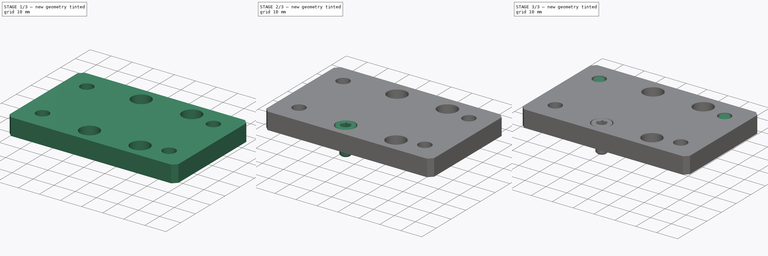
[diagram: build sequence overview — one tinted view per stage of 3, left to right]
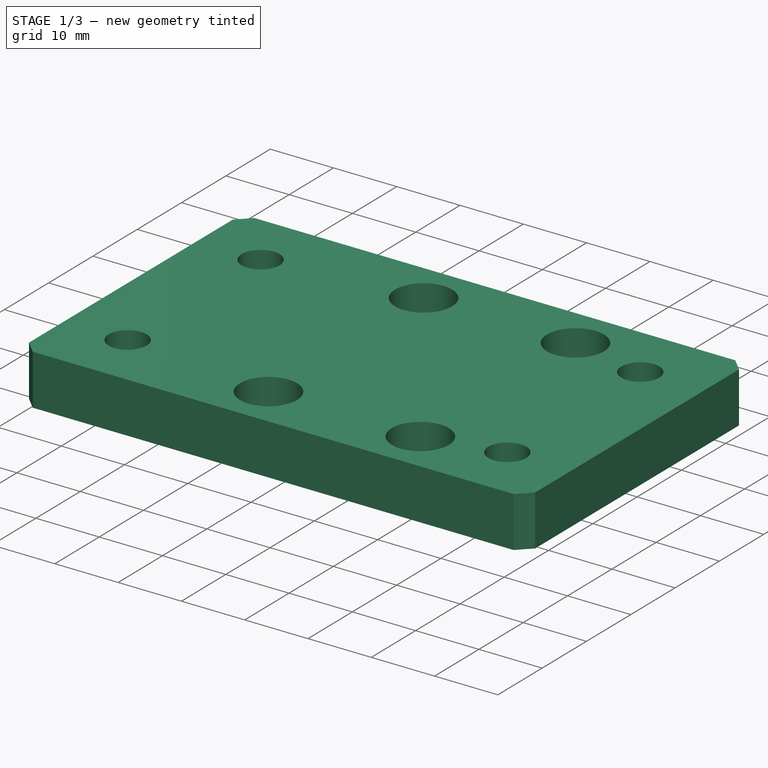
[diagram: stage 1 of 3 — iso view after this stage's code; geometry added in this stage tinted green]
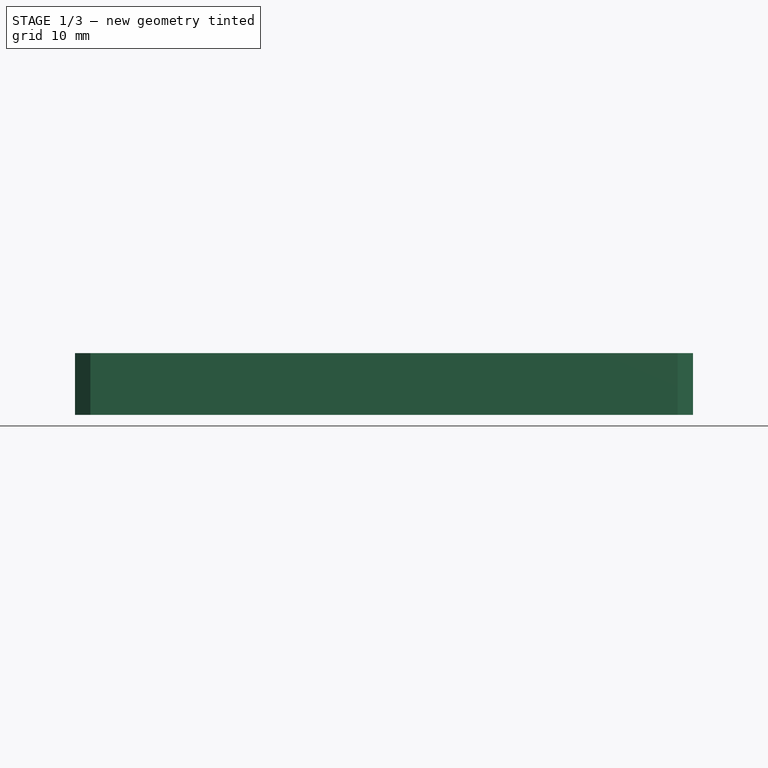
[diagram: stage 1 of 3 — front view after this stage's code; geometry added in this stage tinted green]
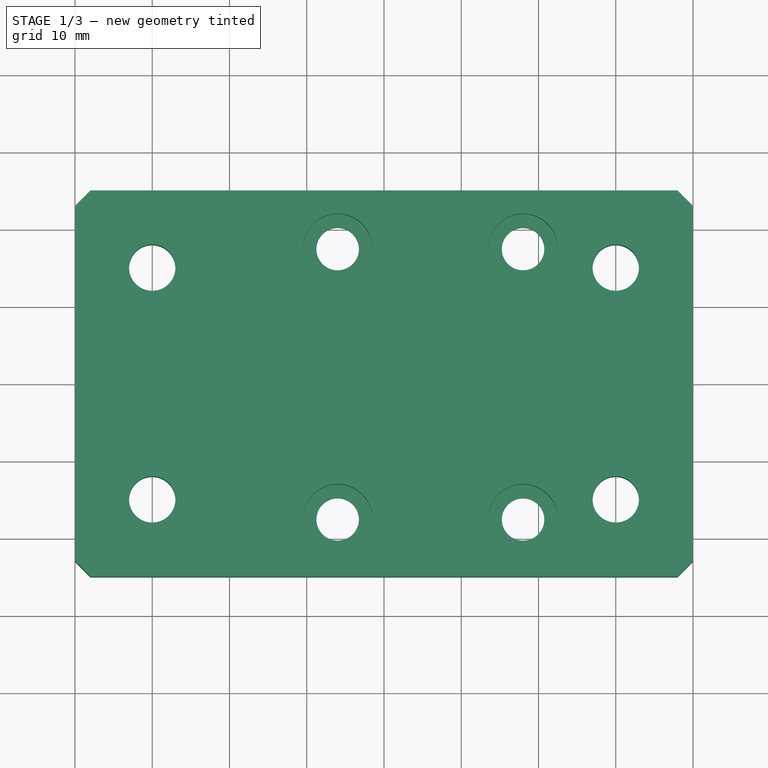
[diagram: stage 1 of 3 — top view after this stage's code; geometry added in this stage tinted green]
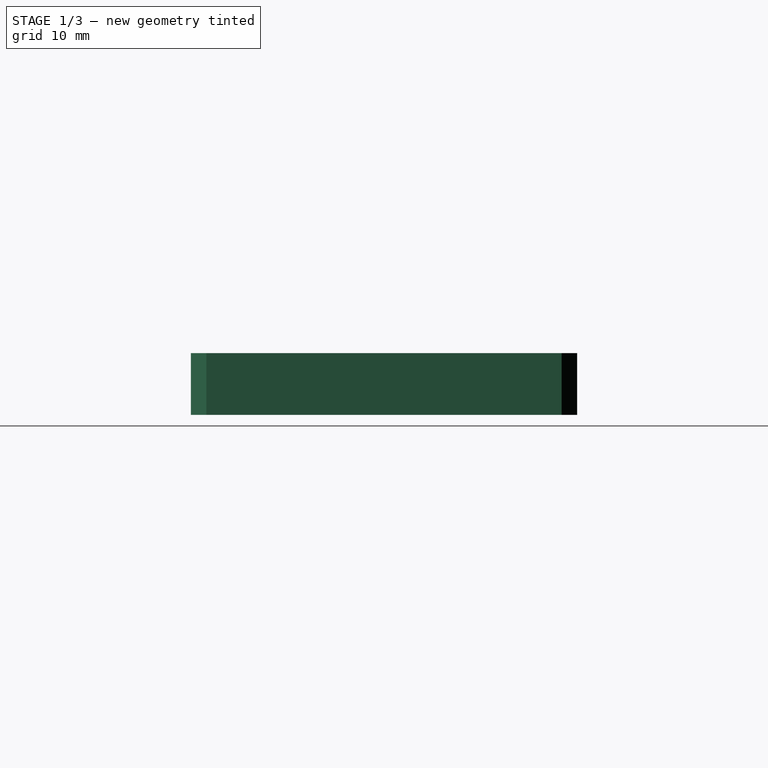
[diagram: stage 1 of 3 — right view after this stage's code; geometry added in this stage tinted green]
FCSTD DOCUMENT  (FreeCAD 1.0R39109 (Git))
Label: Bracket for X axis ball screw
License: All rights reserved
LicenseURL: https://en.wikipedia.org/wiki/All_rights_reserved
objects: Part::Feature×10, Part::FeaturePython×4, Sketcher::SketchObject×2, App::Part×2, PartDesign::Chamfer×2, PartDesign::Pad×1, PartDesign::Hole×1, PartDesign::Body×1
note: 31 computed .brp shape members not serialized (recipe doc carries the construction recipe); baked Part::Feature solids carry a one-line shape summary decoded from their .brp

FEATURE [Sketcher::SketchObject] Sketch
  ArcFitTolerance = 1e-06
  AttachmentSupport = -> [XY_Plane]
  FullyConstrained = true
  MakeInternals = false
  MapMode = 5
  sketch-geometry (12):
    g0: LineSegment StartX=-40 StartY=25 StartZ=0 EndX=-40 EndY=-25 EndZ=0
    g1: LineSegment StartX=-40 StartY=-25 StartZ=0 EndX=40 EndY=-25 EndZ=0
    g2: LineSegment StartX=40 StartY=-25 StartZ=0 EndX=40 EndY=25 EndZ=0
    g3: LineSegment StartX=40 StartY=25 StartZ=0 EndX=-40 EndY=25 EndZ=0
    g4: LineSegment [constr] StartX=-30 StartY=15 StartZ=0 EndX=-30 EndY=-15 EndZ=0
    g5: LineSegment [constr] StartX=-30 StartY=-15 StartZ=0 EndX=30 EndY=-15 EndZ=0
    g6: LineSegment [constr] StartX=30 StartY=-15 StartZ=0 EndX=30 EndY=15 EndZ=0
    g7: LineSegment [constr] StartX=30 StartY=15 StartZ=0 EndX=-30 EndY=15 EndZ=0
    g8: Circle CenterX=-30 CenterY=15 CenterZ=0 NormalX=0 NormalY=0 NormalZ=1 AngleXU=0 Radius=3
    g9: Circle CenterX=30 CenterY=15 CenterZ=0 NormalX=0 NormalY=0 NormalZ=1 AngleXU=0 Radius=3
    g10: Circle CenterX=30 CenterY=-15 CenterZ=0 NormalX=0 NormalY=0 NormalZ=1 AngleXU=0 Radius=3
    g11: Circle CenterX=-30 CenterY=-15 CenterZ=0 NormalX=0 NormalY=0 NormalZ=1 AngleXU=0 Radius=3
  constraints (30):
    c: Coincident(g0,g1)
    c: Coincident(g1,g2)
    c: Coincident(g2,g3)
    c: Coincident(g3,g0)
    c: Vertical(g0)
    c: Vertical(g2)
    c: Horizontal(g1)
    c: Horizontal(g3)
    c: Distance(g1) = 80
    c: Distance(g2) = 50
    c: Symmetric(g0,g1,g-1)
    c: Coincident(g4,g5)
    c: Coincident(g5,g6)
    c: Coincident(g6,g7)
    c: Coincident(g7,g4)
    c: Vertical(g4)
    c: Vertical(g6)
    c: Horizontal(g5)
    c: Horizontal(g7)
    c: Symmetric(g4,g5,g-1)
    c: Distance(g7) = 60
    c: Distance(g4) = 30
    c: Coincident(g8,g4)
    c: Diameter(g9) = 6
    c: Coincident(g9,g6)
    c: Coincident(g10,g5)
    c: Coincident(g11,g4)
    c: Equal(g11,g8)
    c: Equal(g8,g9)
    c: Equal(g9,g10)
FEATURE [PartDesign::Pad] Pad
  Direction = (0,0,1)
  Length = 8
  Length2 = 10
  Profile = -> Sketch
  ReferenceAxis = -> Sketch [N_Axis]
  Refine = true
  Reversed = true
  Suppressed = false
  Type = 0
FEATURE [Sketcher::SketchObject] Sketch001
  ArcFitTolerance = 1e-06
  AttachmentSupport = -> [XY_Plane]
  FullyConstrained = false
  MakeInternals = false
  MapMode = 5
  sketch-geometry (14):
    g0: LineSegment [constr] StartX=-24 StartY=25 StartZ=0 EndX=-24 EndY=-25 EndZ=0
    g1: LineSegment [constr] StartX=-24 StartY=-25 StartZ=0 EndX=24 EndY=-25 EndZ=0
    g2: LineSegment [constr] StartX=24 StartY=-25 StartZ=0 EndX=24 EndY=25 EndZ=0
    g3: LineSegment [constr] StartX=24 StartY=25 StartZ=0 EndX=-24 EndY=25 EndZ=0
    g4: LineSegment [constr] StartX=-12 StartY=25 StartZ=0 EndX=-12 EndY=-25 EndZ=0
    g5: GeomPoint [constr] X=6 Y=-1.4e-15 Z=0
    g6: LineSegment [constr] StartX=-6 StartY=17.5 StartZ=0 EndX=-6 EndY=-17.5 EndZ=0
    g7: LineSegment [constr] StartX=-6 StartY=-17.5 StartZ=0 EndX=18 EndY=-17.5 EndZ=0
    g8: LineSegment [constr] StartX=18 StartY=-17.5 StartZ=0 EndX=18 EndY=17.5 EndZ=0
    g9: LineSegment [constr] StartX=18 StartY=17.5 StartZ=0 EndX=-6 EndY=17.5 EndZ=0
    g10: Circle CenterX=-6 CenterY=17.5 CenterZ=0 NormalX=0 NormalY=0 NormalZ=1 AngleXU=0 Radius=3.03278
    g11: Circle CenterX=18 CenterY=17.5 CenterZ=0 NormalX=0 NormalY=0 NormalZ=1 AngleXU=0 Radius=2.46457
    g12: Circle CenterX=-6 CenterY=-17.5 CenterZ=0 NormalX=0 NormalY=0 NormalZ=1 AngleXU=0 Radius=2.39818
    g13: Circle CenterX=18 CenterY=-17.5 CenterZ=0 NormalX=0 NormalY=0 NormalZ=1 AngleXU=0 Radius=3.50348
  constraints (31):
    c: Coincident(g0,g1)
    c: Coincident(g1,g2)
    c: Coincident(g2,g3)
    c: Coincident(g3,g0)
    c: Vertical(g0)
    c: Vertical(g2)
    c: Horizontal(g1)
    c: Horizontal(g3)
    c: Distance(g1) = 48
    c: Distance(g2) = 50
    c: Symmetric(g0,g1,g-1)
    c: PointOnObject(g4,g3)
    c: PointOnObject(g4,g1)
    c: Vertical(g4)
    c: Symmetric(g4,g1,g5)
    c: Distance(g4,g2) = 36
    c: Coincident(g6,g7)
    c: Coincident(g7,g8)
    c: Coincident(g8,g9)
    c: Coincident(g9,g6)
    c: Vertical(g6)
    c: Vertical(g8)
    c: Horizontal(g7)
    c: Horizontal(g9)
    c: Symmetric(g6,g7,g5)
    c: Distance(g7) = 24
    c: Distance(g8) = 35
    c: Coincident(g10,g6)
    c: Coincident(g11,g8)
    c: Coincident(g12,g6)
    c: Coincident(g13,g7)
FEATURE [PartDesign::Hole] Hole
  BaseFeature = -> Pad
  CustomThreadClearance = 0
  Depth = 191.25
  DepthType = 1
  Diameter = 5.5
  DrillForDepth = false
  DrillPoint = 1
  DrillPointAngle = 118
  HoleCutCountersinkAngle = 90
  HoleCutCustomValues = false
  HoleCutDepth = 5.5
  HoleCutDiameter = 9
  HoleCutType = 1
  ModelThread = false
  Profile = -> Sketch001
  Refine = true
  Suppressed = false
  Tapered = false
  TaperedAngle = 90
  ThreadClass = 0
  ThreadDepth = 191.25
  ThreadDepthType = 0
  ThreadDirection = 0
  ThreadFit = 0
  ThreadSize = 13
  ThreadType = 1
  Threaded = false
  UseCustomThreadClearance = false
FEATURE [PartDesign::Chamfer] Chamfer
  Angle = 45
  Base = -> Hole [Edge1,Edge2,Edge5,Edge8]
  BaseFeature = -> Hole
  ChamferType = 0
  FlipDirection = false
  Refine = true
  Size = 2
  Size2 = 1
  SupportTransform = false
  Suppressed = false
  UseAllEdges = false
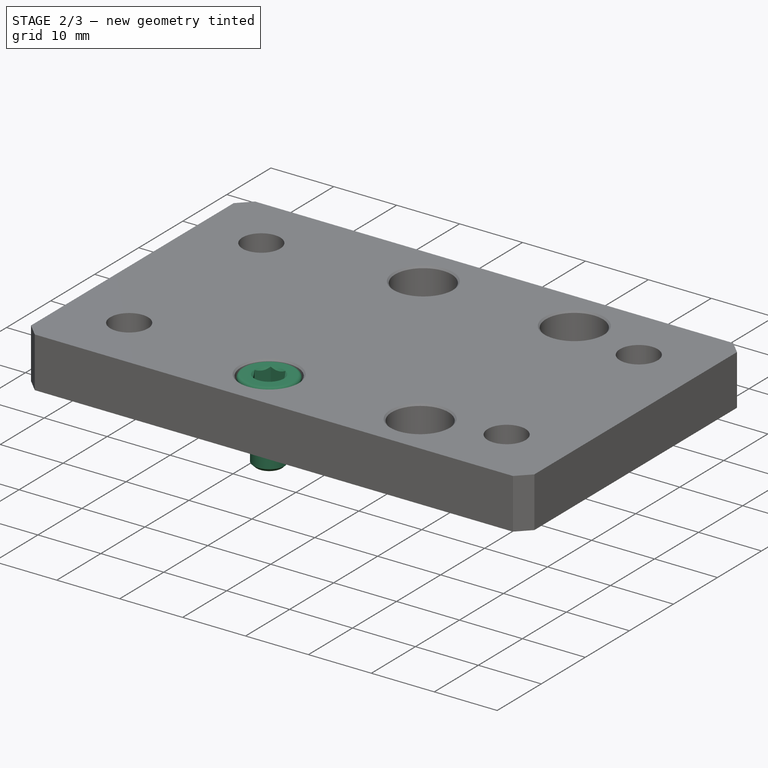
[diagram: stage 2 of 3 — iso view after this stage's code; geometry added in this stage tinted green]
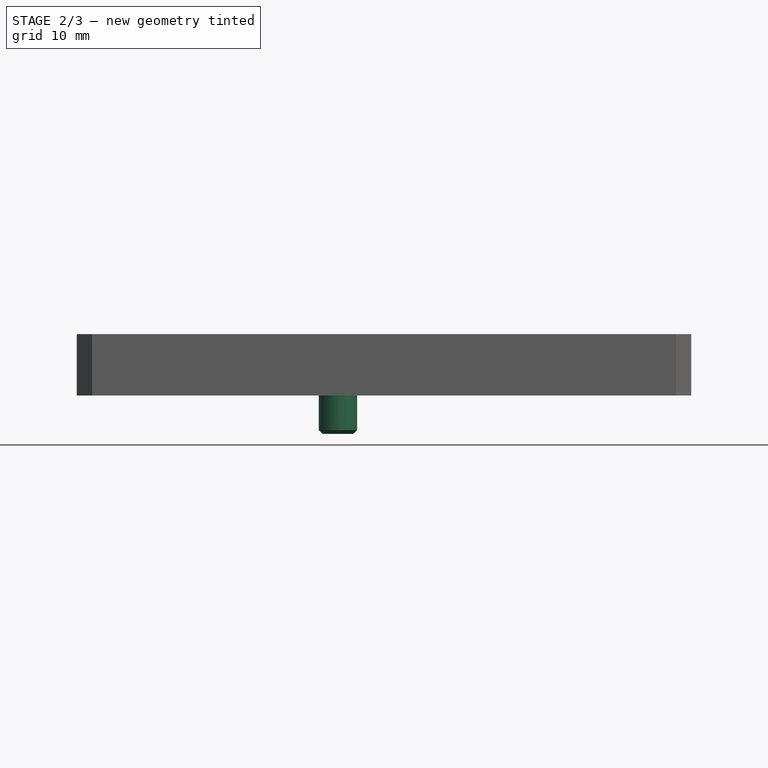
[diagram: stage 2 of 3 — front view after this stage's code; geometry added in this stage tinted green]
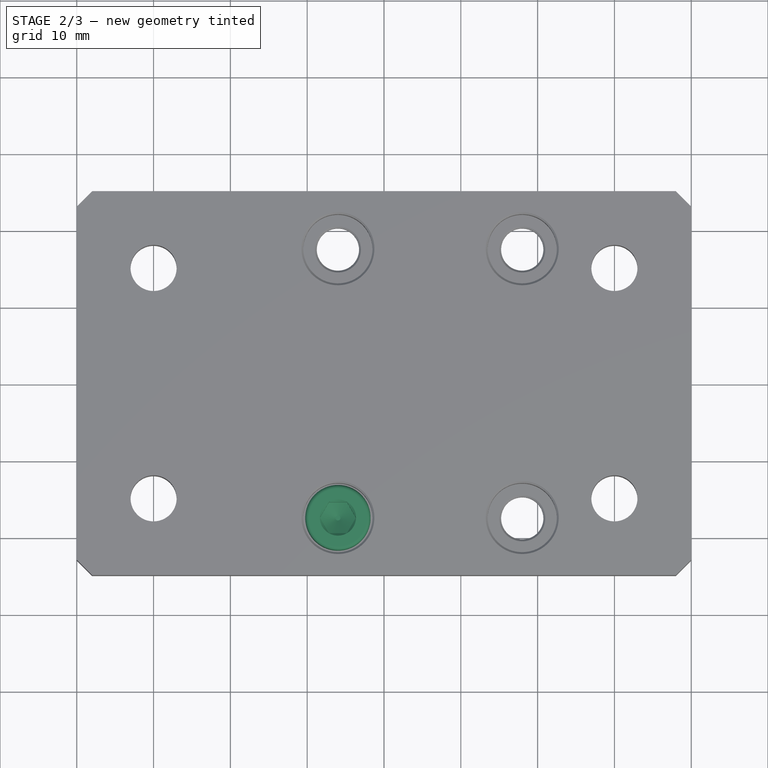
[diagram: stage 2 of 3 — top view after this stage's code; geometry added in this stage tinted green]
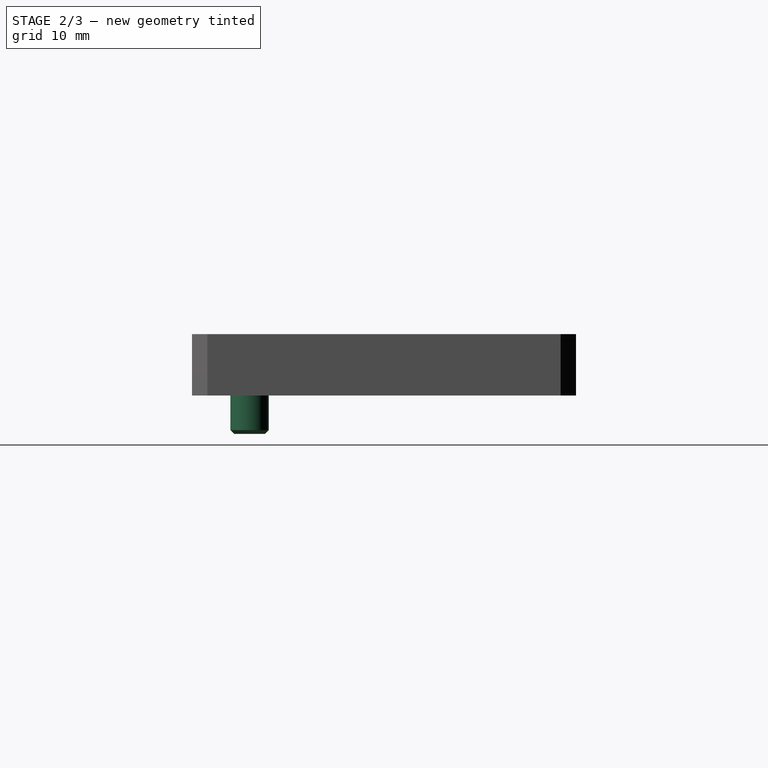
[diagram: stage 2 of 3 — right view after this stage's code; geometry added in this stage tinted green]
FEATURE [Part::FeaturePython] Screw004  label="M5x8-Screw002"  # WARN: FeaturePython — macro-defined, semantics opaque (R4)
  Diameter = 6
  Invert = false
  LeftHanded = false
  Length = 0
  LengthCustom = 8
  MatchOuter = false
  OffsetAngle = 0
  Placement = pos=(-6,-17.5,-5) rot=(0,0,-1;3.14159rad)
  Thread = false
  Type = 75
FEATURE [PartDesign::Chamfer] Chamfer001
  Angle = 45
  Base = -> Chamfer [Edge19,Edge60,Edge58,Edge17,Edge56,Edge14,Edge13,Edge54]
  BaseFeature = -> Chamfer
  ChamferType = 0
  FlipDirection = false
  Refine = true
  Size = 0.25
  Size2 = 1
  SupportTransform = false
  Suppressed = false
  UseAllEdges = false
FEATURE [PartDesign::Body] Body
  AllowCompound = false
  Group = -> [Sketch,Pad,Sketch001,Hole,Chamfer,Chamfer001]
  Origin = -> Origin
  Tip = -> Chamfer001
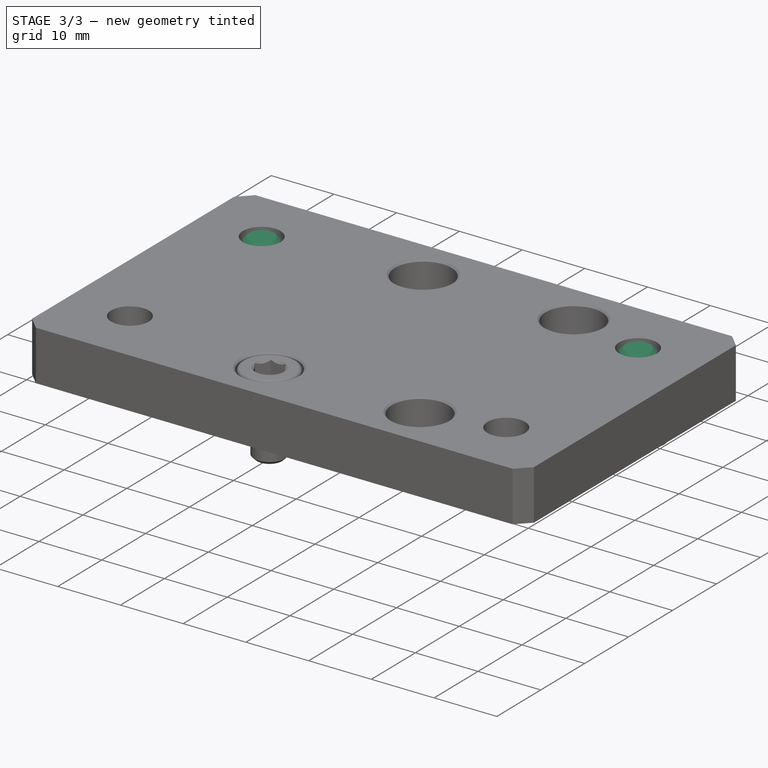
[diagram: stage 3 of 3 — iso view after this stage's code; geometry added in this stage tinted green]
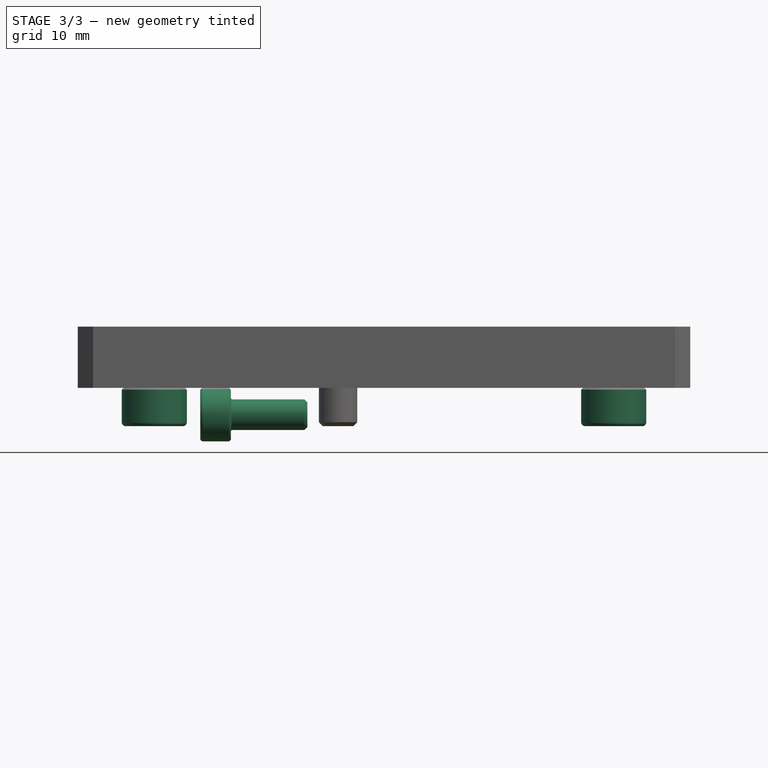
[diagram: stage 3 of 3 — front view after this stage's code; geometry added in this stage tinted green]
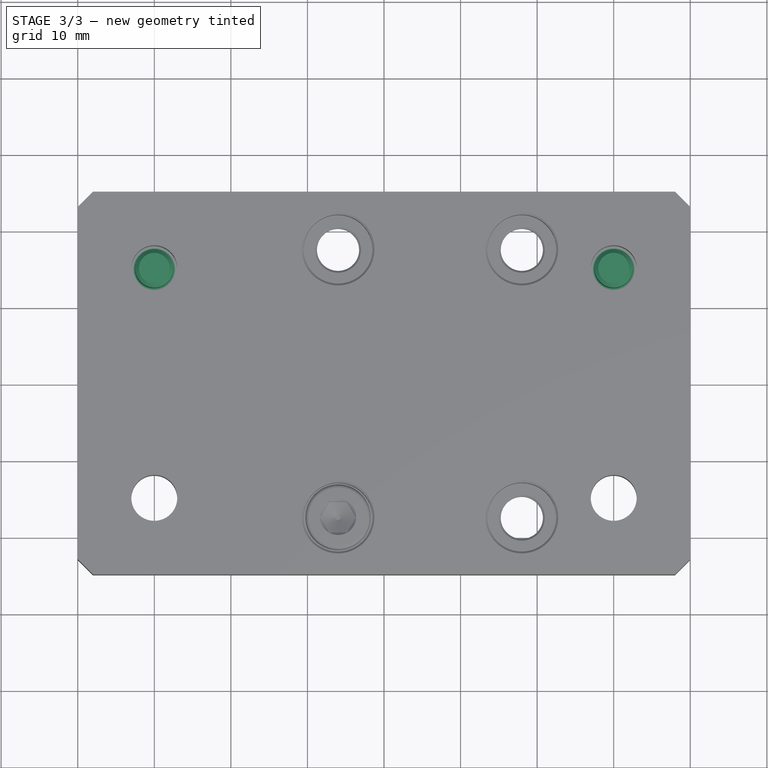
[diagram: stage 3 of 3 — top view after this stage's code; geometry added in this stage tinted green]
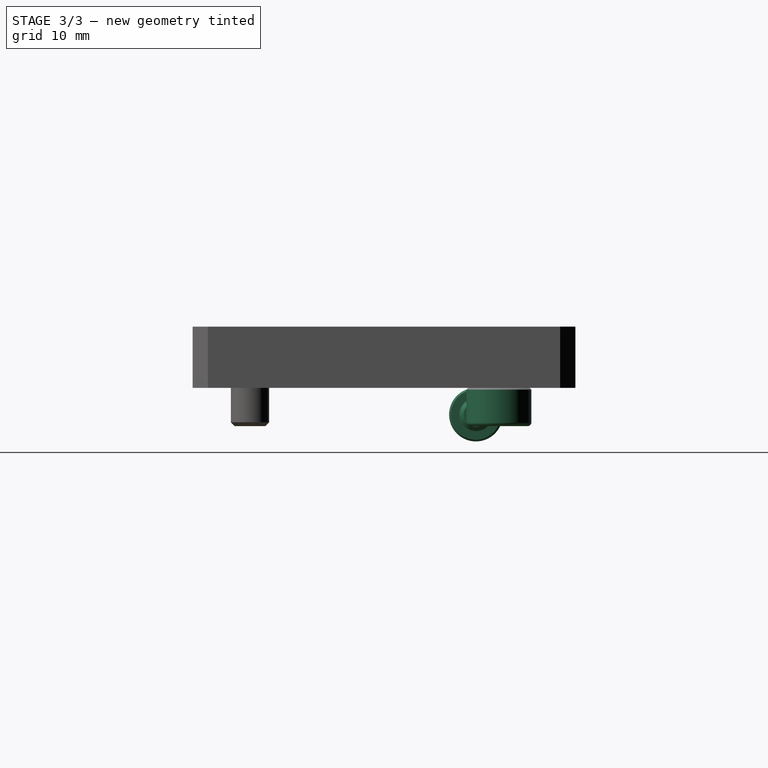
[diagram: stage 3 of 3 — right view after this stage's code; geometry added in this stage tinted green]
FEATURE [Part::Feature] Part__Feature  label="SFU1204 housing"
  Placement = pos=(6,-1.3e-15,-23) rot=(0,0,1;4.71239rad)
  shape: bbox 36 x 50 x 30 mm, 92 faces (baked)
FEATURE [Part::Feature] Part__Feature001  label="SFU Ball Nut_1204-3"
  shape: bbox 42 x 30 x 35 mm, 127 faces (baked)
FEATURE [Part::Feature] Part__Feature002  label="SFU1204 Washer Front"
  shape: bbox 17.5 x 17.5 x 9.691 mm, 23 faces (baked)
FEATURE [Part::Feature] Part__Feature003  label="SFU1204 Washer Back"
  shape: bbox 17.5 x 17.5 x 9.691 mm, 23 faces (baked)
FEATURE [Part::Feature] Part__Feature004  label="Grease Nipple A_A M6x1.00"
  shape: bbox 9.143 x 16.91 x 9.143 mm, 68 faces (baked)
FEATURE [Part::Feature] Part__Feature005  label="Steel Ball_O 2.50"
  Placement = pos=(0,1.19521,0) rot=(0,0,1;0rad)
  shape: bbox 2.5 x 2.5 x 2.5 mm, 2 faces (baked)
FEATURE [App::Part] Grease_Nipple_A_M6x1_00  label="Grease Nipple A M6x1.00"
  Group = -> [Part__Feature004,Part__Feature005]
  Origin = -> Origin001
  Placement = pos=(26.2888,10.8892,-4.25) rot=(0,0,-1;1.1781rad)
FEATURE [Part::Feature] Part__Feature006  label="socket set screw cone point_iso_ISO 4027 - M3 x 5-C"
  Placement = pos=(-2e-16,13.75,-2.25) rot=(0.57735,-0.57735,-0.57735;2.0944rad)
  shape: bbox 3 x 5 x 3 mm, 14 faces (baked)
FEATURE [Part::Feature] Part__Feature007  label="socket set screw cone point_iso_ISO 4027 - M3 x 5-C001"
  Placement = pos=(4e-16,-13.75,-2.25) rot=(0.57735,0.57735,-0.57735;4.18879rad)
  shape: bbox 3 x 5 x 3 mm, 14 faces (baked)
FEATURE [Part::Feature] Part__Feature008  label="socket set screw cone point_iso_ISO 4027 - M3 x 2.5-C"
  Placement = pos=(0,11.25,-32.75) rot=(0.57735,-0.57735,0.57735;4.18879rad)
  shape: bbox 3 x 2.5 x 3 mm, 14 faces (baked)
FEATURE [Part::Feature] Part__Feature009  label="socket set screw cone point_iso_ISO 4027 - M3 x 2.5-C001"
  Placement = pos=(1.73e-14,-11.25,-32.75) rot=(0.57735,0.57735,0.57735;2.0944rad)
  shape: bbox 3 x 2.5 x 3 mm, 14 faces (baked)
FEATURE [App::Part] SFU1204_3  label="SFU1204-3"
  Group = -> [Part__Feature001,Part__Feature002,Part__Feature003,Grease_Nipple_A_M6x1_00,Part__Feature006,Part__Feature007,Part__Feature008,Part__Feature009]
  Origin = -> Origin002
  Placement = pos=(-20,5.1e-15,-23) rot=(-0.57735,-0.57735,0.57735;2.0944rad)
FEATURE [Part::FeaturePython] Screw  label="M4x10-Screw"  # WARN: FeaturePython — macro-defined, semantics opaque (R4)
  Diameter = 4
  Invert = false
  LeftHanded = false
  Length = 2
  LengthCustom = 10
  MatchOuter = false
  OffsetAngle = 0
  Placement = pos=(-20,12,-11.5) rot=(0,1,0;4.71239rad)
  Thread = false
  Type = 53
FEATURE [Part::FeaturePython] Screw002  label="M5x8-Screw"  # WARN: FeaturePython — macro-defined, semantics opaque (R4)
  Diameter = 6
  Invert = false
  LeftHanded = false
  Length = 0
  LengthCustom = 8
  MatchOuter = false
  OffsetAngle = 0
  Placement = pos=(-30,15,-8) rot=(0,1,0;3.14159rad)
  Thread = false
  Type = 75
FEATURE [Part::FeaturePython] Screw003  label="M5x8-Screw001"  # WARN: FeaturePython — macro-defined, semantics opaque (R4)
  Diameter = 6
  Invert = false
  LeftHanded = false
  Length = 0
  LengthCustom = 8
  MatchOuter = false
  OffsetAngle = 0
  Placement = pos=(30,15,-8) rot=(0,1,0;3.14159rad)
  Thread = false
  Type = 75
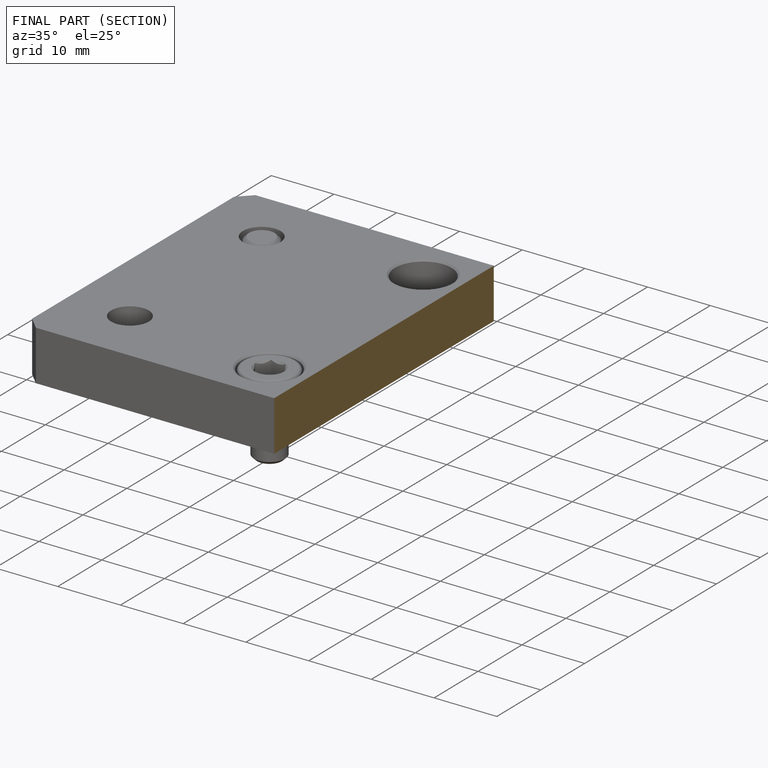
[diagram: finished part — half-section view (interior)]
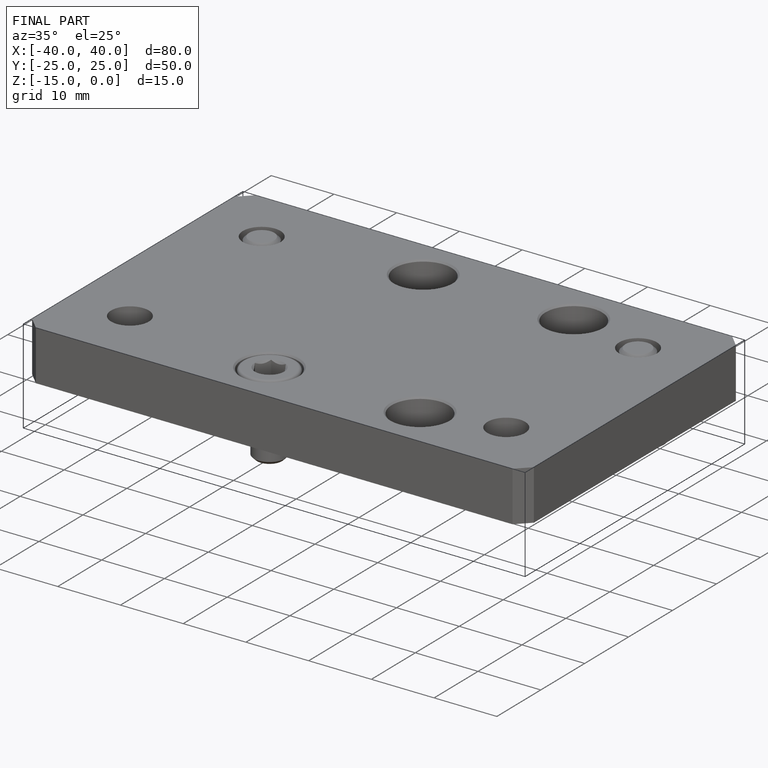
[diagram: finished part — iso view with bounding-box wireframe]
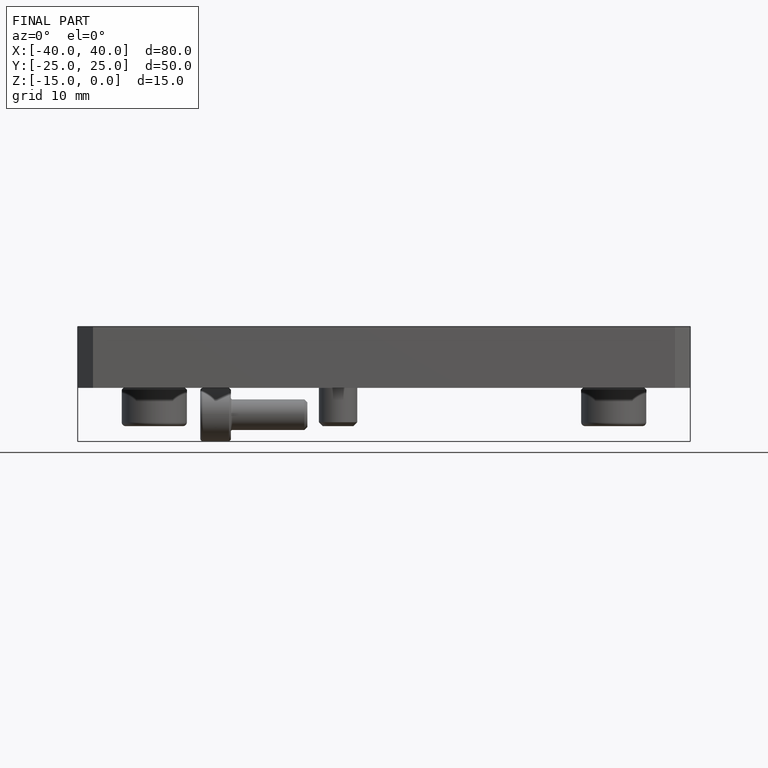
[diagram: finished part — front view with bounding-box wireframe]
